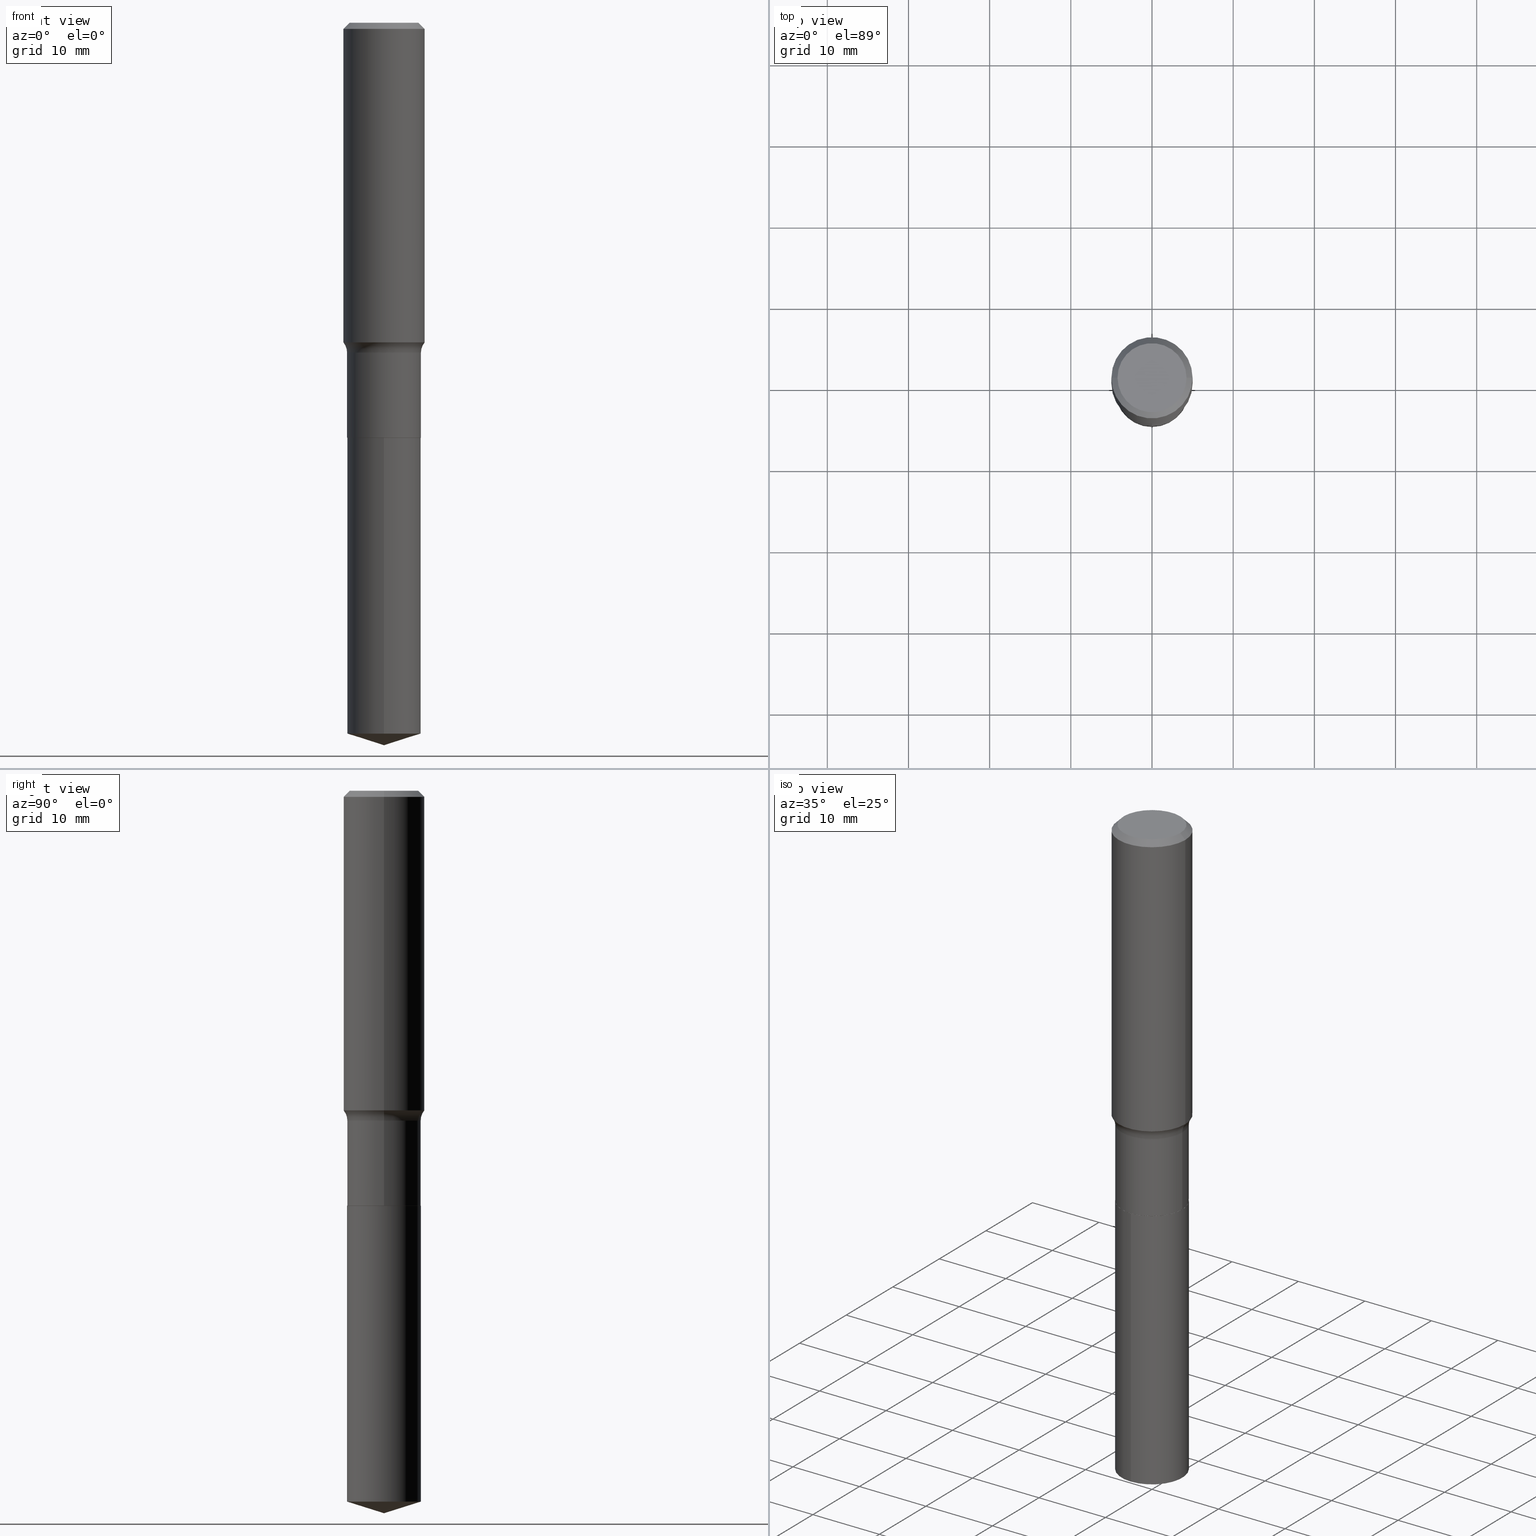
[diagram: canonical four-view strip — front | top / right | iso, engineering-drawing reading convention]
A machine part, canonical four-view strip (front | top / right | iso — engineering-drawing reading convention). The complete STEP part file that produces these views, byte-faithful:
ISO-10303-21;
HEADER;
FILE_DESCRIPTION (( 'STEP AP203' ),
    '1' );
FILE_NAME ('63773.STEP',
    '2024-04-19T15:09:27',
    ( '' ),
    ( '' ),
    'SwSTEP 2.0',
    'SolidWorks 2023',
    '' );
FILE_SCHEMA (( 'CONFIG_CONTROL_DESIGN' ));
ENDSEC;

DATA;
#1 = CARTESIAN_POINT ( 'NONE',  ( 7.220858017463207734E-31, -1.030947152326916363E-16, -0.02952750000000018554 ) ) ;
#2 = ORIENTED_EDGE ( 'NONE', *, *, #24, .T. ) ;
#3 = DIRECTION ( 'NONE',  ( -2.445392753752402791E-29, 3.491590250255455996E-15, 1.000000000000000000 ) ) ;
#4 = CARTESIAN_POINT ( 'NONE',  ( 0.1968500000000002470, -6.787522268346197963E-15, -1.550323642009541203 ) ) ;
#5 = EDGE_CURVE ( 'NONE', #71, #12, #87, .T. ) ;
#6 = CARTESIAN_POINT ( 'NONE',  ( 4.919794144283256694E-29, -7.024162157484638649E-15, -2.011799999999999589 ) ) ;
#7 = DATE_TIME_ROLE ( 'creation_date' ) ;
#8 = CARTESIAN_POINT ( 'NONE',  ( -0.1968500000000000527, -1.359307014894414260E-15, -0.02952750000000018554 ) ) ;
#9 = VECTOR ( 'NONE', #316, 39.37007874015748143 ) ;
#10 = LINE ( 'NONE', #193, #9 ) ;
#11 = ORIENTED_EDGE ( 'NONE', *, *, #58, .T. ) ;
#12 = VERTEX_POINT ( 'NONE', #396 ) ;
#13 = CARTESIAN_POINT ( 'NONE',  ( 1.272937311114268616E-15, 0.1791499999999929815, -2.011800000000000477 ) ) ;
#14 = PERSON_AND_ORGANIZATION_ROLE ( 'design_supplier' ) ;
#15 = VERTEX_POINT ( 'NONE', #429 ) ;
#16 = DIRECTION ( 'NONE',  ( -2.445468806185136597E-29, 3.491481338843145583E-15, 1.000000000000000000 ) ) ;
#17 = AXIS2_PLACEMENT_3D ( 'NONE', #61, #218, #101 ) ;
#18 = EDGE_LOOP ( 'NONE', ( #129, #363, #440 ) ) ;
#19 = CARTESIAN_POINT ( 'NONE',  ( 7.220858017463207734E-31, -1.030947152326916363E-16, -0.02952750000000018554 ) ) ;
#20 = EDGE_CURVE ( 'NONE', #284, #82, #401, .T. ) ;
#21 = ORIENTED_EDGE ( 'NONE', *, *, #388, .F. ) ;
#22 = LINE ( 'NONE', #171, #73 ) ;
#23 = DIRECTION ( 'NONE',  ( 1.000000000000000000, -6.982962677686267499E-15, 0.000000000000000000 ) ) ;
#24 = EDGE_CURVE ( 'NONE', #132, #390, #84, .T. ) ;
#25 = AXIS2_PLACEMENT_3D ( 'NONE', #417, #407, #57 ) ;
#26 = LOCAL_TIME ( 11, 9, 27.00000000000000000, #468 ) ;
#27 = DIRECTION ( 'NONE',  ( -2.445468806185136597E-29, 3.491481338843145583E-15, 1.000000000000000000 ) ) ;
#29 = DIRECTION ( 'NONE',  ( -2.445468806185136877E-29, 3.491481338843145188E-15, 1.000000000000000000 ) ) ;
#28 = AXIS2_PLACEMENT_3D ( 'NONE', #65, #72, #307 ) ;
#30 = EDGE_CURVE ( 'NONE', #361, #390, #189, .T. ) ;
#31 = CARTESIAN_POINT ( 'NONE',  ( 0.1968500000000001360, -1.374596203102542594E-15, 9.598753983154306463E-30 ) ) ;
#32 = DIRECTION ( 'NONE',  ( -6.982962677686265133E-15, -1.000000000000000000, 3.049788438363675772E-15 ) ) ;
#33 = ADVANCED_FACE ( 'NONE', ( #43 ), #340, .T. ) ;
#34 = PRODUCT_DEFINITION_FORMATION_WITH_SPECIFIED_SOURCE ( 'ANY', '', #79, .NOT_KNOWN. ) ;
#35 = ORIENTED_EDGE ( 'NONE', *, *, #346, .T. ) ;
#36 = LINE ( 'NONE', #362, #102 ) ;
#37 = ADVANCED_FACE ( 'NONE', ( #278 ), #380, .F. ) ;
#38 = APPROVAL ( #384, 'UNSPECIFIED' ) ;
#39 = DIRECTION ( 'NONE',  ( -2.445392753752402791E-29, 3.491590250255455996E-15, 1.000000000000000000 ) ) ;
#40 = DIRECTION ( 'NONE',  ( 1.000000000000000000, -6.982962677686267499E-15, 4.876294436782262290E-29 ) ) ;
#41 = AXIS2_PLACEMENT_3D ( 'NONE', #441, #16, #367 ) ;
#42 = VERTEX_POINT ( 'NONE', #238 ) ;
#43 = FACE_OUTER_BOUND ( 'NONE', #327, .T. ) ;
#44 = DIRECTION ( 'NONE',  ( 1.000000000000000000, -6.982962677686267499E-15, 4.876176775795935793E-29 ) ) ;
#45 = CARTESIAN_POINT ( 'NONE',  ( 0.000000000000000000, 0.000000000000000000, 0.000000000000000000 ) ) ;
#46 = ORIENTED_EDGE ( 'NONE', *, *, #256, .T. ) ;
#47 = APPROVAL_ROLE ( '' ) ;
#48 = ORIENTED_EDGE ( 'NONE', *, *, #5, .T. ) ;
#49 = CARTESIAN_POINT ( 'NONE',  ( 4.918571409880165014E-29, -7.022416416815218724E-15, -2.011299999999999866 ) ) ;
#50 = DIRECTION ( 'NONE',  ( 2.445392753752402791E-29, -3.491590250255455602E-15, -1.000000000000000000 ) ) ;
#51 = ORIENTED_EDGE ( 'NONE', *, *, #308, .T. ) ;
#52 = CARTESIAN_POINT ( 'NONE',  ( 0.1786500000000000310, -8.271668439853290854E-15, -2.011799999999999589 ) ) ;
#53 = AXIS2_PLACEMENT_3D ( 'NONE', #460, #201, #114 ) ;
#54 = CC_DESIGN_APPROVAL ( #136, ( #421 ) ) ;
#55 = EDGE_CURVE ( 'NONE', #82, #197, #324, .T. ) ;
#56 = ORIENTED_EDGE ( 'NONE', *, *, #55, .T. ) ;
#57 = DIRECTION ( 'NONE',  ( 1.000000000000000000, -6.982962677686269866E-15, 0.000000000000000000 ) ) ;
#58 = EDGE_CURVE ( 'NONE', #15, #42, #212, .T. ) ;
#59 = AXIS2_PLACEMENT_3D ( 'NONE', #158, #317, #466 ) ;
#60 = AXIS2_PLACEMENT_3D ( 'NONE', #488, #409, #418 ) ;
#61 = CARTESIAN_POINT ( 'NONE',  ( -8.770674059368540989E-28, 1.252302191110326694E-13, 35.86617874015747987 ) ) ;
#62 = CARTESIAN_POINT ( 'NONE',  ( 3.791268106025665529E-29, -5.412926065243653988E-15, -1.550323642009541203 ) ) ;
#63 = FACE_OUTER_BOUND ( 'NONE', #478, .T. ) ;
#64 = AXIS2_PLACEMENT_3D ( 'NONE', #255, #248, #133 ) ;
#65 = CARTESIAN_POINT ( 'NONE',  ( 4.919794144283257255E-29, -7.024162157484639438E-15, -2.011800000000000033 ) ) ;
#66 = ORIENTED_EDGE ( 'NONE', *, *, #325, .T. ) ;
#67 = EDGE_LOOP ( 'NONE', ( #254, #372, #81, #134 ) ) ;
#68 = PERSON_AND_ORGANIZATION_ROLE ( 'creator' ) ;
#69 = EDGE_CURVE ( 'NONE', #200, #160, #454, .T. ) ;
#70 = ORIENTED_EDGE ( 'NONE', *, *, #484, .T. ) ;
#71 = VERTEX_POINT ( 'NONE', #251 ) ;
#72 = DIRECTION ( 'NONE',  ( -2.445392753752402791E-29, 3.491590250255455996E-15, 1.000000000000000000 ) ) ;
#73 = VECTOR ( 'NONE', #94, 39.37007874015748854 ) ;
#74 = ORIENTED_EDGE ( 'NONE', *, *, #105, .T. ) ;
#75 = DIRECTION ( 'NONE',  ( -2.445468806185136597E-29, 3.491481338843145583E-15, 1.000000000000000000 ) ) ;
#76 = DESIGN_CONTEXT ( 'detailed design', #377, 'design' ) ;
#77 = DIRECTION ( 'NONE',  ( -2.445392753752402791E-29, 3.491590250255455996E-15, 1.000000000000000000 ) ) ;
#78 = EDGE_CURVE ( 'NONE', #390, #132, #303, .T. ) ;
#79 = PRODUCT ( '63773', '63773', '', ( #302 ) ) ;
#80 = DIRECTION ( 'NONE',  ( -2.445468806185136597E-29, 3.491481338843145583E-15, 1.000000000000000000 ) ) ;
#81 = ORIENTED_EDGE ( 'NONE', *, *, #325, .F. ) ;
#82 = VERTEX_POINT ( 'NONE', #135 ) ;
#83 = DIRECTION ( 'NONE',  ( 1.000000000000000000, -6.982962677686267499E-15, 4.876294436782262290E-29 ) ) ;
#84 = CIRCLE ( 'NONE', #53, 0.1968500000000000527 ) ;
#85 = ORIENTED_EDGE ( 'NONE', *, *, #308, .F. ) ;
#86 = AXIS2_PLACEMENT_3D ( 'NONE', #62, #298, #419 ) ;
#87 = LINE ( 'NONE', #124, #221 ) ;
#88 = FACE_OUTER_BOUND ( 'NONE', #277, .T. ) ;
#89 = CALENDAR_DATE ( 2024, 19, 4 ) ;
#90 = ORIENTED_EDGE ( 'NONE', *, *, #227, .T. ) ;
#91 = ADVANCED_FACE ( 'NONE', ( #290 ), #92, .F. ) ;
#92 = PLANE ( 'NONE',  #176 ) ;
#93 = ORIENTED_EDGE ( 'NONE', *, *, #175, .F. ) ;
#94 = DIRECTION ( 'NONE',  ( 6.776566513254260504E-15, 0.9537169507482292641, 0.3007057995042659027 ) ) ;
#95 = EDGE_CURVE ( 'NONE', #71, #284, #22, .T. ) ;
#96 = ORIENTED_EDGE ( 'NONE', *, *, #470, .T. ) ;
#97 = DIRECTION ( 'NONE',  ( 0.7071067811865459074, -7.319954787623249734E-15, -0.7071067811865491270 ) ) ;
#98 = AXIS2_PLACEMENT_3D ( 'NONE', #314, #198, #40 ) ;
#99 = CIRCLE ( 'NONE', #253, 0.1791500000000000314 ) ;
#100 = ORIENTED_EDGE ( 'NONE', *, *, #170, .F. ) ;
#101 = DIRECTION ( 'NONE',  ( -6.982962677686265922E-15, -1.000000000000000000, 3.500519750498688260E-15 ) ) ;
#102 = VECTOR ( 'NONE', #270, 39.37007874015748854 ) ;
#103 = TOROIDAL_SURFACE ( 'NONE', #463, 0.2571499999999999342, 0.07799999999999999989 ) ;
#104 = CARTESIAN_POINT ( 'NONE',  ( 3.912260996134981658E-29, -5.585671845881263700E-15, -1.599799999999999889 ) ) ;
#105 = EDGE_CURVE ( 'NONE', #280, #132, #331, .T. ) ;
#106 = CARTESIAN_POINT ( 'NONE',  ( 0.000000000000000000, 0.000000000000000000, 0.000000000000000000 ) ) ;
#107 = EDGE_CURVE ( 'NONE', #284, #12, #299, .T. ) ;
#108 = FACE_OUTER_BOUND ( 'NONE', #204, .T. ) ;
#109 = ORIENTED_EDGE ( 'NONE', *, *, #143, .F. ) ;
#110 = APPROVAL ( #286, 'UNSPECIFIED' ) ;
#111 =( NAMED_UNIT ( * ) SI_UNIT ( $, .STERADIAN. ) SOLID_ANGLE_UNIT ( ) );
#112 = FACE_OUTER_BOUND ( 'NONE', #404, .T. ) ;
#113 = DIRECTION ( 'NONE',  ( 1.000000000000000000, -6.982962677686266711E-15, 4.883557194083112901E-29 ) ) ;
#114 = DIRECTION ( 'NONE',  ( 1.000000000000000000, -6.982962677686266711E-15, 0.000000000000000000 ) ) ;
#115 = CYLINDRICAL_SURFACE ( 'NONE', #393, 0.1791500000000000314 ) ;
#116 = CIRCLE ( 'NONE', #231, 0.1791499999999999759 ) ;
#117 = CC_DESIGN_SECURITY_CLASSIFICATION ( #421, ( #34 ) ) ;
#118 = PERSON_AND_ORGANIZATION_ROLE ( 'creator' ) ;
#119 = EDGE_LOOP ( 'NONE', ( #438, #406, #436, #442 ) ) ;
#120 = DIRECTION ( 'NONE',  ( -2.445468806185136597E-29, 3.491481338843145583E-15, 1.000000000000000000 ) ) ;
#121 = DATE_AND_TIME ( #202, #271 ) ;
#122 = CARTESIAN_POINT ( 'NONE',  ( -1.250997763707445513E-15, -0.1791500000000070536, -2.011799999999999145 ) ) ;
#123 = EDGE_LOOP ( 'NONE', ( #247, #51, #70, #400 ) ) ;
#124 = CARTESIAN_POINT ( 'NONE',  ( 8.568411669873045356E-29, -1.223418307787009269E-14, -3.503899999999999793 ) ) ;
#125 = APPROVAL_DATE_TIME ( #162, #110 ) ;
#126 = AXIS2_PLACEMENT_3D ( 'NONE', #49, #205, #288 ) ;
#127 = ORIENTED_EDGE ( 'NONE', *, *, #334, .T. ) ;
#128 = CC_DESIGN_APPROVAL ( #110, ( #34 ) ) ;
#129 = ORIENTED_EDGE ( 'NONE', *, *, #5, .F. ) ;
#130 = PERSON_AND_ORGANIZATION ( #232, #142 ) ;
#131 = EDGE_CURVE ( 'NONE', #42, #287, #369, .T. ) ;
#132 = VERTEX_POINT ( 'NONE', #266 ) ;
#133 = DIRECTION ( 'NONE',  ( -6.982962677686265133E-15, -1.000000000000000000, 3.049788438363675772E-15 ) ) ;
#134 = ORIENTED_EDGE ( 'NONE', *, *, #450, .F. ) ;
#135 = CARTESIAN_POINT ( 'NONE',  ( 1.272937311114303917E-15, 0.1791499999999929815, -2.011800000000000477 ) ) ;
#136 = APPROVAL ( #365, 'UNSPECIFIED' ) ;
#137 = ORIENTED_EDGE ( 'NONE', *, *, #30, .F. ) ;
#138 = AXIS2_PLACEMENT_3D ( 'NONE', #209, #412, #166 ) ;
#139 = VECTOR ( 'NONE', #348, 39.37007874015748143 ) ;
#140 = CARTESIAN_POINT ( 'NONE',  ( 1.272937311114304312E-15, 0.1791499999999880688, -3.447414221972331383 ) ) ;
#141 = APPLICATION_CONTEXT ( 'configuration controlled 3d designs of mechanical parts and assemblies' ) ;
#142 = ORGANIZATION ( 'UNSPECIFIED', 'UNSPECIFIED', '' ) ;
#143 = EDGE_CURVE ( 'NONE', #200, #411, #472, .T. ) ;
#144 = FACE_OUTER_BOUND ( 'NONE', #123, .T. ) ;
#145 = CC_DESIGN_PERSON_AND_ORGANIZATION_ASSIGNMENT ( #224, #68, ( #355 ) ) ;
#146 = PERSON_AND_ORGANIZATION ( #232, #142 ) ;
#148 = AXIS2_PLACEMENT_3D ( 'NONE', #45, #75, #152 ) ;
#147 =( NAMED_UNIT ( * ) PLANE_ANGLE_UNIT ( ) SI_UNIT ( $, .RADIAN. ) );
#149 = CARTESIAN_POINT ( 'NONE',  ( 4.919794144283257255E-29, -7.024162157484639438E-15, -2.011800000000000033 ) ) ;
#150 = EDGE_LOOP ( 'NONE', ( #161, #48, #351 ) ) ;
#151 = PERSON_AND_ORGANIZATION ( #232, #142 ) ;
#152 = DIRECTION ( 'NONE',  ( 1.000000000000000000, -6.982962677686267499E-15, 4.876176775795935793E-29 ) ) ;
#153 = DIRECTION ( 'NONE',  ( -2.445468806185136877E-29, 3.491481338843145188E-15, 1.000000000000000000 ) ) ;
#154 = CALENDAR_DATE ( 2024, 19, 4 ) ;
#155 = APPROVAL_PERSON_ORGANIZATION ( #151, #38, #265 ) ;
#156 = DIRECTION ( 'NONE',  ( -6.982962677686265922E-15, -1.000000000000000000, 3.500519750498688260E-15 ) ) ;
#157 = ADVANCED_FACE ( 'NONE', ( #88 ), #115, .T. ) ;
#158 = CARTESIAN_POINT ( 'NONE',  ( 7.220858017463207734E-31, -1.030947152326916363E-16, -0.02952750000000018554 ) ) ;
#159 = LINE ( 'NONE', #122, #283 ) ;
#160 = VERTEX_POINT ( 'NONE', #457 ) ;
#161 = ORIENTED_EDGE ( 'NONE', *, *, #95, .F. ) ;
#162 = DATE_AND_TIME ( #89, #487 ) ;
#163 = CIRCLE ( 'NONE', #98, 0.1673224999999999851 ) ;
#164 = ORIENTED_EDGE ( 'NONE', *, *, #69, .T. ) ;
#165 = VECTOR ( 'NONE', #29, 39.37007874015748143 ) ;
#166 = DIRECTION ( 'NONE',  ( -6.982962677686265133E-15, -1.000000000000000000, 3.049788438363675772E-15 ) ) ;
#167 = ORIENTED_EDGE ( 'NONE', *, *, #107, .T. ) ;
#168 = DIRECTION ( 'NONE',  ( -2.445468806185136597E-29, 3.491481338843145583E-15, 1.000000000000000000 ) ) ;
#169 = EDGE_LOOP ( 'NONE', ( #306, #366 ) ) ;
#170 = EDGE_CURVE ( 'NONE', #280, #361, #313, .T. ) ;
#171 = CARTESIAN_POINT ( 'NONE',  ( 8.568720357740247371E-29, -1.223374486191152020E-14, -3.503899999999999793 ) ) ;
#172 = CARTESIAN_POINT ( 'NONE',  ( 0.1673224999999999851, -1.300749711163072594E-15, 4.096137381456741925E-18 ) ) ;
#173 = VECTOR ( 'NONE', #281, 39.37007874015748143 ) ;
#174 = CIRCLE ( 'NONE', #222, 0.1786500000000000310 ) ;
#175 = EDGE_CURVE ( 'NONE', #347, #287, #36, .T. ) ;
#176 = AXIS2_PLACEMENT_3D ( 'NONE', #376, #443, #328 ) ;
#177 = DIRECTION ( 'NONE',  ( 1.000000000000000000, -6.982962677686265922E-15, 4.876176775795935793E-29 ) ) ;
#178 = CYLINDRICAL_SURFACE ( 'NONE', #215, 0.1968500000000001360 ) ;
#179 = PRODUCT_RELATED_PRODUCT_CATEGORY ( 'detail', '', ( #79 ) ) ;
#180 = DIRECTION ( 'NONE',  ( -6.982962677686265133E-15, -1.000000000000000000, 3.049788438363675772E-15 ) ) ;
#181 = APPLICATION_PROTOCOL_DEFINITION ( 'international standard', 'config_control_design', 1994, #141 ) ;
#182 = VECTOR ( 'NONE', #364, 39.37007874015748143 ) ;
#183 = ORIENTED_EDGE ( 'NONE', *, *, #20, .F. ) ;
#185 =( LENGTH_UNIT ( ) NAMED_UNIT ( * ) SI_UNIT ( $, .METRE. ) );
#184 = APPROVAL_PERSON_ORGANIZATION ( #321, #136, #47 ) ;
#186 = EDGE_LOOP ( 'NONE', ( #100, #74, #2, #137 ) ) ;
#187 = DIRECTION ( 'NONE',  ( -2.445468806185136597E-29, 3.491481338843145583E-15, 1.000000000000000000 ) ) ;
#188 = CARTESIAN_POINT ( 'NONE',  ( -0.1786500000000000310, -5.752128332875109429E-15, -2.011799999999999589 ) ) ;
#189 = LINE ( 'NONE', #357, #182 ) ;
#190 = LINE ( 'NONE', #358, #349 ) ;
#191 = DATE_TIME_ROLE ( 'classification_date' ) ;
#192 = ADVANCED_FACE ( 'NONE', ( #112 ), #214, .T. ) ;
#193 = CARTESIAN_POINT ( 'NONE',  ( -0.1791499999999999759, 1.272937311114219312E-15, -8.812272214191663486E-30 ) ) ;
#194 = PERSON_AND_ORGANIZATION ( #232, #142 ) ;
#195 = VECTOR ( 'NONE', #373, 39.37007874015748854 ) ;
#196 = FACE_OUTER_BOUND ( 'NONE', #150, .T. ) ;
#197 = VERTEX_POINT ( 'NONE', #354 ) ;
#198 = DIRECTION ( 'NONE',  ( -2.445468806185136597E-29, 3.491481338843145583E-15, 1.000000000000000000 ) ) ;
#199 = PERSON_AND_ORGANIZATION ( #232, #142 ) ;
#200 = VERTEX_POINT ( 'NONE', #4 ) ;
#201 = DIRECTION ( 'NONE',  ( -2.445468806185136597E-29, 3.491481338843145583E-15, 1.000000000000000000 ) ) ;
#202 = CALENDAR_DATE ( 2024, 19, 4 ) ;
#203 = CARTESIAN_POINT ( 'NONE',  ( 4.919794144283256694E-29, -7.024162157484638649E-15, -2.011799999999999589 ) ) ;
#204 = EDGE_LOOP ( 'NONE', ( #164, #90, #333, #237 ) ) ;
#205 = DIRECTION ( 'NONE',  ( -2.445468806185136597E-29, 3.491481338843145583E-15, 1.000000000000000000 ) ) ;
#206 = DIRECTION ( 'NONE',  ( 6.982962677686265922E-15, 1.000000000000000000, -3.491590250255455602E-15 ) ) ;
#207 = VERTEX_POINT ( 'NONE', #279 ) ;
#208 = AXIS2_PLACEMENT_3D ( 'NONE', #1, #387, #458 ) ;
#209 = CARTESIAN_POINT ( 'NONE',  ( 4.919794144283257255E-29, -7.024162157484639438E-15, -2.011800000000000033 ) ) ;
#210 = ADVANCED_BREP_SHAPE_REPRESENTATION ( '63773', ( #274, #275, #262 ), #386 ) ;
#211 = ORIENTED_EDGE ( 'NONE', *, *, #329, .T. ) ;
#212 = LINE ( 'NONE', #52, #195 ) ;
#213 = CYLINDRICAL_SURFACE ( 'NONE', #326, 0.1968500000000001360 ) ;
#214 = CONICAL_SURFACE ( 'NONE', #461, 0.1786500000000000310, 0.7853981633978239785 ) ;
#215 = AXIS2_PLACEMENT_3D ( 'NONE', #225, #456, #230 ) ;
#216 = CARTESIAN_POINT ( 'NONE',  ( -0.2571499999999999342, -3.758511200874166934E-15, -1.599799999999999889 ) ) ;
#217 = ADVANCED_FACE ( 'NONE', ( #402 ), #233, .T. ) ;
#218 = DIRECTION ( 'NONE',  ( -2.445392753752402791E-29, 3.491590250255455996E-15, 1.000000000000000000 ) ) ;
#219 = CC_DESIGN_PERSON_AND_ORGANIZATION_ASSIGNMENT ( #199, #403, ( #421 ) ) ;
#220 = APPLICATION_PROTOCOL_DEFINITION ( 'international standard', 'config_control_design', 1994, #377 ) ;
#221 = VECTOR ( 'NONE', #244, 39.37007874015748143 ) ;
#222 = AXIS2_PLACEMENT_3D ( 'NONE', #203, #475, #273 ) ;
#223 = DIRECTION ( 'NONE',  ( 1.000000000000000000, 0.000000000000000000, 0.000000000000000000 ) ) ;
#224 = PERSON_AND_ORGANIZATION ( #232, #142 ) ;
#225 = CARTESIAN_POINT ( 'NONE',  ( 0.000000000000000000, 0.000000000000000000, 0.000000000000000000 ) ) ;
#226 = DIRECTION ( 'NONE',  ( -2.445392753752402791E-29, 3.491590250255455602E-15, 1.000000000000000000 ) ) ;
#227 = EDGE_CURVE ( 'NONE', #160, #390, #190, .T. ) ;
#228 = CONICAL_SURFACE ( 'NONE', #17, 124.8659371009156445, 1.265363707695893014 ) ;
#229 = ORIENTED_EDGE ( 'NONE', *, *, #388, .T. ) ;
#231 = AXIS2_PLACEMENT_3D ( 'NONE', #249, #410, #435 ) ;
#230 = DIRECTION ( 'NONE',  ( 1.000000000000000000, -6.982962677686266711E-15, 4.876176775795935793E-29 ) ) ;
#232 = PERSON ( 'UNSPECIFIED', 'UNSPECIFIED', 'UNSPECIFIED', ('UNSPECIFIED'), ('UNSPECIFIED'), ('UNSPECIFIED') ) ;
#233 = CYLINDRICAL_SURFACE ( 'NONE', #258, 0.1791499999999999759 ) ;
#234 = EDGE_CURVE ( 'NONE', #361, #280, #163, .T. ) ;
#235 = CARTESIAN_POINT ( 'NONE',  ( -0.1673224999999999851, 1.219954130253505460E-15, 4.096137381439757534E-18 ) ) ;
#236 = ADVANCED_FACE ( 'NONE', ( #339 ), #228, .T. ) ;
#237 = ORIENTED_EDGE ( 'NONE', *, *, #484, .F. ) ;
#238 = CARTESIAN_POINT ( 'NONE',  ( 0.1791500000000000314, -8.273414180522713146E-15, -2.011299999999999866 ) ) ;
#239 = DIRECTION ( 'NONE',  ( 1.000000000000000000, -6.982962677686263555E-15, 0.000000000000000000 ) ) ;
#240 = PERSON_AND_ORGANIZATION ( #232, #142 ) ;
#241 = CIRCLE ( 'NONE', #360, 0.1791500000000000314 ) ;
#242 = CYLINDRICAL_SURFACE ( 'NONE', #148, 0.1791499999999999759 ) ;
#243 = EDGE_LOOP ( 'NONE', ( #465, #56 ) ) ;
#244 = DIRECTION ( 'NONE',  ( -6.659769872151635244E-15, -0.9537169507482271547, 0.3007057995042725640 ) ) ;
#245 = CALENDAR_DATE ( 2024, 19, 4 ) ;
#246 = DIRECTION ( 'NONE',  ( -1.000000000000000000, 7.105427357601001859E-15, 0.000000000000000000 ) ) ;
#247 = ORIENTED_EDGE ( 'NONE', *, *, #227, .F. ) ;
#248 = DIRECTION ( 'NONE',  ( -2.445392753752402791E-29, 3.491590250255455996E-15, 1.000000000000000000 ) ) ;
#249 = CARTESIAN_POINT ( 'NONE',  ( 3.912260996134981658E-29, -5.585671845881263700E-15, -1.599799999999999889 ) ) ;
#250 = ORIENTED_EDGE ( 'NONE', *, *, #234, .F. ) ;
#251 = CARTESIAN_POINT ( 'NONE',  ( 8.568411669873043113E-29, -1.223418307787009269E-14, -3.503899999999999793 ) ) ;
#252 = AXIS2_PLACEMENT_3D ( 'NONE', #399, #120, #83 ) ;
#253 = AXIS2_PLACEMENT_3D ( 'NONE', #431, #423, #180 ) ;
#254 = ORIENTED_EDGE ( 'NONE', *, *, #131, .T. ) ;
#255 = CARTESIAN_POINT ( 'NONE',  ( 8.430434759878289213E-29, -1.203673877805130082E-14, -3.447414221972330495 ) ) ;
#256 = EDGE_CURVE ( 'NONE', #347, #15, #445, .T. ) ;
#257 = DIRECTION ( 'NONE',  ( -2.438088387897960049E-29, 3.491481338843145188E-15, 1.000000000000000000 ) ) ;
#258 = AXIS2_PLACEMENT_3D ( 'NONE', #464, #397, #44 ) ;
#259 = AXIS2_PLACEMENT_3D ( 'NONE', #398, #39, #156 ) ;
#260 = PERSON_AND_ORGANIZATION_ROLE ( 'design_owner' ) ;
#261 = ADVANCED_FACE ( 'NONE', ( #332 ), #480, .F. ) ;
#262 = AXIS2_PLACEMENT_3D ( 'NONE', #106, #424, #223 ) ;
#263 = ORIENTED_EDGE ( 'NONE', *, *, #78, .T. ) ;
#264 = APPROVAL_DATE_TIME ( #425, #38 ) ;
#265 = APPROVAL_ROLE ( '' ) ;
#266 = CARTESIAN_POINT ( 'NONE',  ( 0.1968500000000000527, -1.477690918335233688E-15, -0.02952750000000018554 ) ) ;
#267 = DIRECTION ( 'NONE',  ( -6.982962677686266711E-15, -1.000000000000000000, 3.491481338843145583E-15 ) ) ;
#268 = FACE_OUTER_BOUND ( 'NONE', #186, .T. ) ;
#269 = EDGE_CURVE ( 'NONE', #287, #42, #482, .T. ) ;
#270 = DIRECTION ( 'NONE',  ( -0.7071067811868130271, 7.493145998871311837E-15, 0.7071067811862817853 ) ) ;
#272 = APPROVAL_ROLE ( '' ) ;
#271 = LOCAL_TIME ( 11, 9, 27.00000000000000000, #282 ) ;
#273 = DIRECTION ( 'NONE',  ( 1.000000000000000000, -6.982962677686263555E-15, 0.000000000000000000 ) ) ;
#274 = MANIFOLD_SOLID_BREP ( 'Body-Move/Copy2[1]', #420 ) ;
#275 = MANIFOLD_SOLID_BREP ( 'Body-Move/Copy2[2]', #336 ) ;
#276 = CC_DESIGN_DATE_AND_TIME_ASSIGNMENT ( #323, #191, ( #421 ) ) ;
#277 = EDGE_LOOP ( 'NONE', ( #183, #167, #229, #309 ) ) ;
#278 = FACE_OUTER_BOUND ( 'NONE', #375, .T. ) ;
#279 = CARTESIAN_POINT ( 'NONE',  ( -0.1791499999999999759, -5.031106820234022294E-15, -1.599799999999999889 ) ) ;
#280 = VERTEX_POINT ( 'NONE', #172 ) ;
#281 = DIRECTION ( 'NONE',  ( -2.445392753752402791E-29, 3.491590250255455602E-15, 1.000000000000000000 ) ) ;
#282 = COORDINATED_UNIVERSAL_TIME_OFFSET ( 5, 0, .BEHIND. ) ;
#283 = VECTOR ( 'NONE', #226, 39.37007874015748143 ) ;
#284 = VERTEX_POINT ( 'NONE', #140 ) ;
#285 = PRODUCT_DEFINITION_SHAPE ( 'NONE', 'NONE',  #355 ) ;
#286 = APPROVAL_STATUS ( 'not_yet_approved' ) ;
#287 = VERTEX_POINT ( 'NONE', #335 ) ;
#288 = DIRECTION ( 'NONE',  ( 1.000000000000000000, -6.982962677686267499E-15, 0.000000000000000000 ) ) ;
#289 = ORIENTED_EDGE ( 'NONE', *, *, #30, .T. ) ;
#290 = FACE_OUTER_BOUND ( 'NONE', #322, .T. ) ;
#291 = ADVANCED_FACE ( 'NONE', ( #483 ), #296, .F. ) ;
#292 = CARTESIAN_POINT ( 'NONE',  ( 4.919794144283257255E-29, -7.024162157484639438E-15, -2.011800000000000033 ) ) ;
#293 = CONICAL_SURFACE ( 'NONE', #208, 0.1968500000000000527, 0.7853981633974460586 ) ;
#294 = ORIENTED_EDGE ( 'NONE', *, *, #329, .F. ) ;
#295 = CC_DESIGN_PERSON_AND_ORGANIZATION_ASSIGNMENT ( #240, #118, ( #34 ) ) ;
#296 = PLANE ( 'NONE',  #428 ) ;
#297 = CARTESIAN_POINT ( 'NONE',  ( 0.000000000000000000, 0.000000000000000000, 0.000000000000000000 ) ) ;
#298 = DIRECTION ( 'NONE',  ( -2.445468806185136597E-29, 3.491481338843145583E-15, 1.000000000000000000 ) ) ;
#299 = CIRCLE ( 'NONE', #64, 0.1791500000000000314 ) ;
#300 = CONICAL_SURFACE ( 'NONE', #259, 124.8659371009156445, 1.265363707695893014 ) ;
#301 = UNCERTAINTY_MEASURE_WITH_UNIT (LENGTH_MEASURE( 1.000000000000000082E-05 ), #395, 'distance_accuracy_value', 'NONE');
#302 = MECHANICAL_CONTEXT ( 'NONE', #141, 'mechanical' ) ;
#303 = CIRCLE ( 'NONE', #413, 0.1968500000000000527 ) ;
#304 = FACE_OUTER_BOUND ( 'NONE', #451, .T. ) ;
#305 = DIRECTION ( 'NONE',  ( -6.982962677686265133E-15, -1.000000000000000000, 3.049788438363675772E-15 ) ) ;
#306 = ORIENTED_EDGE ( 'NONE', *, *, #346, .F. ) ;
#307 = DIRECTION ( 'NONE',  ( -6.982962677686265133E-15, -1.000000000000000000, 3.049788438363675772E-15 ) ) ;
#308 = EDGE_CURVE ( 'NONE', #160, #200, #437, .T. ) ;
#309 = ORIENTED_EDGE ( 'NONE', *, *, #55, .F. ) ;
#310 = LENGTH_MEASURE_WITH_UNIT ( LENGTH_MEASURE( 0.02539999999999999897 ), #185 );
#311 = FACE_OUTER_BOUND ( 'NONE', #320, .T. ) ;
#312 = CC_DESIGN_PERSON_AND_ORGANIZATION_ASSIGNMENT ( #130, #14, ( #34 ) ) ;
#313 = CIRCLE ( 'NONE', #252, 0.1673224999999999851 ) ;
#314 = CARTESIAN_POINT ( 'NONE',  ( -1.001697619218021790E-46, 1.430158722866389718E-32, 4.096137381448108366E-18 ) ) ;
#315 = COORDINATED_UNIVERSAL_TIME_OFFSET ( 5, 0, .BEHIND. ) ;
#316 = DIRECTION ( 'NONE',  ( -2.445468806185136877E-29, 3.491481338843145188E-15, 1.000000000000000000 ) ) ;
#317 = DIRECTION ( 'NONE',  ( 2.445468806185136597E-29, -3.491481338843145583E-15, -1.000000000000000000 ) ) ;
#318 = ADVANCED_FACE ( 'NONE', ( #144 ), #213, .T. ) ;
#319 = DATE_AND_TIME ( #245, #26 ) ;
#320 = EDGE_LOOP ( 'NONE', ( #294, #492, #427, #66 ) ) ;
#321 = PERSON_AND_ORGANIZATION ( #232, #142 ) ;
#322 = EDGE_LOOP ( 'NONE', ( #447, #416 ) ) ;
#323 = DATE_AND_TIME ( #154, #449 ) ;
#324 = CIRCLE ( 'NONE', #138, 0.1791500000000000314 ) ;
#325 = EDGE_CURVE ( 'NONE', #411, #207, #381, .T. ) ;
#326 = AXIS2_PLACEMENT_3D ( 'NONE', #297, #343, #379 ) ;
#327 = EDGE_LOOP ( 'NONE', ( #476, #250, #289, #263 ) ) ;
#328 = DIRECTION ( 'NONE',  ( -1.000000000000000000, 6.982962677686265922E-15, -4.876176775795935793E-29 ) ) ;
#329 = EDGE_CURVE ( 'NONE', #160, #207, #341, .T. ) ;
#330 = ORIENTED_EDGE ( 'NONE', *, *, #131, .F. ) ;
#331 = LINE ( 'NONE', #477, #485 ) ;
#332 = FACE_OUTER_BOUND ( 'NONE', #243, .T. ) ;
#333 = ORIENTED_EDGE ( 'NONE', *, *, #24, .F. ) ;
#334 = EDGE_CURVE ( 'NONE', #207, #411, #116, .T. ) ;
#335 = CARTESIAN_POINT ( 'NONE',  ( -0.1791500000000000314, -5.031106820234021505E-15, -2.011299999999999866 ) ) ;
#336 = CLOSED_SHELL ( 'NONE', ( #192, #444, #462, #37, #359, #217, #408, #318, #33, #91, #291, #422 ) ) ;
#337 = LOCAL_TIME ( 11, 9, 27.00000000000000000, #491 ) ;
#338 = DIRECTION ( 'NONE',  ( 1.000000000000000000, -6.982962677686269866E-15, 0.000000000000000000 ) ) ;
#339 = FACE_OUTER_BOUND ( 'NONE', #18, .T. ) ;
#340 = CONICAL_SURFACE ( 'NONE', #59, 0.1968500000000000527, 0.7853981633974460586 ) ;
#341 = CIRCLE ( 'NONE', #446, 0.07800000000000002764 ) ;
#342 = CONICAL_SURFACE ( 'NONE', #394, 0.1786500000000000310, 0.7853981633978239785 ) ;
#343 = DIRECTION ( 'NONE',  ( -2.445468806185136597E-29, 3.491481338843145583E-15, 1.000000000000000000 ) ) ;
#344 = CARTESIAN_POINT ( 'NONE',  ( 0.1791499999999999759, -1.250997763707494620E-15, 8.735670693838418171E-30 ) ) ;
#345 = CARTESIAN_POINT ( 'NONE',  ( 4.919794144283256694E-29, -7.024162157484638649E-15, -2.011799999999999589 ) ) ;
#346 = EDGE_CURVE ( 'NONE', #15, #347, #174, .T. ) ;
#347 = VERTEX_POINT ( 'NONE', #188 ) ;
#348 = DIRECTION ( 'NONE',  ( -2.445468806185136877E-29, 3.491481338843145188E-15, 1.000000000000000000 ) ) ;
#349 = VECTOR ( 'NONE', #153, 39.37007874015748143 ) ;
#350 = APPROVAL_PERSON_ORGANIZATION ( #194, #110, #272 ) ;
#351 = ORIENTED_EDGE ( 'NONE', *, *, #107, .F. ) ;
#352 = LINE ( 'NONE', #344, #165 ) ;
#353 = CARTESIAN_POINT ( 'NONE',  ( 3.912260996134981658E-29, -5.585671845881263700E-15, -1.599799999999999889 ) ) ;
#354 = CARTESIAN_POINT ( 'NONE',  ( -1.250997763707445513E-15, -0.1791500000000070536, -2.011799999999999145 ) ) ;
#355 = PRODUCT_DEFINITION ( 'UNKNOWN', '', #34, #76 ) ;
#356 = FACE_OUTER_BOUND ( 'NONE', #67, .T. ) ;
#357 = CARTESIAN_POINT ( 'NONE',  ( -0.1968500000000000527, 1.271501487869850317E-15, -0.02952750000000018554 ) ) ;
#358 = CARTESIAN_POINT ( 'NONE',  ( -0.1968500000000001360, 1.398703375343758182E-15, -9.682923725166790684E-30 ) ) ;
#359 = ADVANCED_FACE ( 'NONE', ( #356 ), #242, .T. ) ;
#360 = AXIS2_PLACEMENT_3D ( 'NONE', #426, #3, #32 ) ;
#361 = VERTEX_POINT ( 'NONE', #235 ) ;
#362 = CARTESIAN_POINT ( 'NONE',  ( -0.1786500000000000310, -5.754777560049219842E-15, -2.011799999999999589 ) ) ;
#363 = ORIENTED_EDGE ( 'NONE', *, *, #95, .T. ) ;
#364 = DIRECTION ( 'NONE',  ( -0.7071067811865459074, 2.468850131082240100E-15, -0.7071067811865491270 ) ) ;
#365 = APPROVAL_STATUS ( 'not_yet_approved' ) ;
#366 = ORIENTED_EDGE ( 'NONE', *, *, #256, .F. ) ;
#367 = DIRECTION ( 'NONE',  ( 1.000000000000000000, -6.982962677686266711E-15, 4.883557194083112901E-29 ) ) ;
#368 = ADVANCED_FACE ( 'NONE', ( #196 ), #300, .T. ) ;
#369 = CIRCLE ( 'NONE', #126, 0.1791500000000000314 ) ;
#370 = CARTESIAN_POINT ( 'NONE',  ( 4.918571409880165014E-29, -7.022416416815218724E-15, -2.011299999999999866 ) ) ;
#371 = AXIS2_PLACEMENT_3D ( 'NONE', #292, #50, #206 ) ;
#372 = ORIENTED_EDGE ( 'NONE', *, *, #383, .T. ) ;
#373 = DIRECTION ( 'NONE',  ( 0.7071067811868130271, -2.468850131085038979E-15, 0.7071067811862817853 ) ) ;
#374 = CC_DESIGN_PERSON_AND_ORGANIZATION_ASSIGNMENT ( #146, #260, ( #79 ) ) ;
#375 = EDGE_LOOP ( 'NONE', ( #85, #211, #127, #109 ) ) ;
#376 = CARTESIAN_POINT ( 'NONE',  ( -5.008488096090108951E-47, 7.150793614331948590E-33, 2.048068690724054183E-18 ) ) ;
#377 = APPLICATION_CONTEXT ( 'configuration controlled 3d designs of mechanical parts and assemblies' ) ;
#378 = DIRECTION ( 'NONE',  ( -2.445468806185136597E-29, 3.491481338843145583E-15, 1.000000000000000000 ) ) ;
#379 = DIRECTION ( 'NONE',  ( 1.000000000000000000, -6.982962677686266711E-15, 4.876176775795935793E-29 ) ) ;
#380 = TOROIDAL_SURFACE ( 'NONE', #41, 0.2571499999999999342, 0.07799999999999999989 ) ;
#381 = CIRCLE ( 'NONE', #415, 0.1791499999999999759 ) ;
#382 = DIRECTION ( 'NONE',  ( 7.105427357601001859E-15, 1.000000000000000000, -3.491481338843145583E-15 ) ) ;
#383 = EDGE_CURVE ( 'NONE', #287, #207, #10, .T. ) ;
#384 = APPROVAL_STATUS ( 'not_yet_approved' ) ;
#385 = AXIS2_PLACEMENT_3D ( 'NONE', #490, #267, #467 ) ;
#386 =( GEOMETRIC_REPRESENTATION_CONTEXT ( 3 ) GLOBAL_UNCERTAINTY_ASSIGNED_CONTEXT ( ( #301 ) ) GLOBAL_UNIT_ASSIGNED_CONTEXT ( ( #395, #147, #111 ) ) REPRESENTATION_CONTEXT ( 'NONE', 'WORKASPACE' ) );
#387 = DIRECTION ( 'NONE',  ( 2.445468806185136597E-29, -3.491481338843145583E-15, -1.000000000000000000 ) ) ;
#388 = EDGE_CURVE ( 'NONE', #12, #197, #159, .T. ) ;
#389 = DIRECTION ( 'NONE',  ( 1.000000000000000000, -6.982962677686263555E-15, 0.000000000000000000 ) ) ;
#390 = VERTEX_POINT ( 'NONE', #8 ) ;
#391 = CYLINDRICAL_SURFACE ( 'NONE', #28, 0.1791500000000000314 ) ;
#392 = ORIENTED_EDGE ( 'NONE', *, *, #430, .F. ) ;
#393 = AXIS2_PLACEMENT_3D ( 'NONE', #149, #77, #305 ) ;
#394 = AXIS2_PLACEMENT_3D ( 'NONE', #345, #486, #389 ) ;
#395 =( CONVERSION_BASED_UNIT ( 'INCH', #310 ) LENGTH_UNIT ( ) NAMED_UNIT ( #489 ) );
#396 = CARTESIAN_POINT ( 'NONE',  ( -1.250997763707411000E-15, -0.1791500000000121329, -3.447414221972330051 ) ) ;
#397 = DIRECTION ( 'NONE',  ( -2.445468806185136597E-29, 3.491481338843145583E-15, 1.000000000000000000 ) ) ;
#398 = CARTESIAN_POINT ( 'NONE',  ( -8.770674059368540989E-28, 1.252302191110326694E-13, 35.86617874015747987 ) ) ;
#399 = CARTESIAN_POINT ( 'NONE',  ( -1.001697619218021790E-46, 1.430158722866389718E-32, 4.096137381448108366E-18 ) ) ;
#400 = ORIENTED_EDGE ( 'NONE', *, *, #78, .F. ) ;
#401 = LINE ( 'NONE', #13, #173 ) ;
#402 = FACE_OUTER_BOUND ( 'NONE', #119, .T. ) ;
#403 = PERSON_AND_ORGANIZATION_ROLE ( 'classification_officer' ) ;
#404 = EDGE_LOOP ( 'NONE', ( #35, #469, #330, #471 ) ) ;
#405 = SECURITY_CLASSIFICATION_LEVEL ( 'unclassified' ) ;
#406 = ORIENTED_EDGE ( 'NONE', *, *, #269, .T. ) ;
#407 = DIRECTION ( 'NONE',  ( -2.445468806185136597E-29, 3.491481338843145583E-15, 1.000000000000000000 ) ) ;
#408 = ADVANCED_FACE ( 'NONE', ( #311 ), #103, .F. ) ;
#409 = DIRECTION ( 'NONE',  ( -2.445468806185136597E-29, 3.491481338843145583E-15, 1.000000000000000000 ) ) ;
#410 = DIRECTION ( 'NONE',  ( -2.445468806185136597E-29, 3.491481338843145583E-15, 1.000000000000000000 ) ) ;
#411 = VERTEX_POINT ( 'NONE', #432 ) ;
#412 = DIRECTION ( 'NONE',  ( -2.445392753752402791E-29, 3.491590250255455996E-15, 1.000000000000000000 ) ) ;
#413 = AXIS2_PLACEMENT_3D ( 'NONE', #19, #168, #479 ) ;
#414 = CC_DESIGN_DATE_AND_TIME_ASSIGNMENT ( #319, #7, ( #355 ) ) ;
#415 = AXIS2_PLACEMENT_3D ( 'NONE', #104, #27, #338 ) ;
#416 = ORIENTED_EDGE ( 'NONE', *, *, #170, .T. ) ;
#417 = CARTESIAN_POINT ( 'NONE',  ( 3.791268106025665529E-29, -5.412926065243653988E-15, -1.550323642009541203 ) ) ;
#418 = DIRECTION ( 'NONE',  ( 1.000000000000000000, -6.982962677686263555E-15, 0.000000000000000000 ) ) ;
#419 = DIRECTION ( 'NONE',  ( 1.000000000000000000, -6.982962677686269866E-15, 0.000000000000000000 ) ) ;
#420 = CLOSED_SHELL ( 'NONE', ( #459, #236, #368, #157, #261 ) ) ;
#421 = SECURITY_CLASSIFICATION ( '', '', #405 ) ;
#422 = ADVANCED_FACE ( 'NONE', ( #63 ), #342, .T. ) ;
#423 = DIRECTION ( 'NONE',  ( -2.445392753752402791E-29, 3.491590250255455996E-15, 1.000000000000000000 ) ) ;
#424 = DIRECTION ( 'NONE',  ( 0.000000000000000000, 0.000000000000000000, 1.000000000000000000 ) ) ;
#425 = DATE_AND_TIME ( #453, #337 ) ;
#426 = CARTESIAN_POINT ( 'NONE',  ( 8.430434759878289213E-29, -1.203673877805130082E-14, -3.447414221972330495 ) ) ;
#427 = ORIENTED_EDGE ( 'NONE', *, *, #143, .T. ) ;
#428 = AXIS2_PLACEMENT_3D ( 'NONE', #448, #257, #177 ) ;
#429 = CARTESIAN_POINT ( 'NONE',  ( 0.1786500000000000310, -8.271668439853290854E-15, -2.011799999999999589 ) ) ;
#430 = EDGE_CURVE ( 'NONE', #197, #82, #99, .T. ) ;
#431 = CARTESIAN_POINT ( 'NONE',  ( 4.919794144283257255E-29, -7.024162157484639438E-15, -2.011800000000000033 ) ) ;
#432 = CARTESIAN_POINT ( 'NONE',  ( 0.1791499999999999759, -6.836669609588758911E-15, -1.599799999999999889 ) ) ;
#433 = ORIENTED_EDGE ( 'NONE', *, *, #269, .F. ) ;
#434 = COORDINATED_UNIVERSAL_TIME_OFFSET ( 5, 0, .BEHIND. ) ;
#435 = DIRECTION ( 'NONE',  ( 1.000000000000000000, -6.982962677686269866E-15, 0.000000000000000000 ) ) ;
#436 = ORIENTED_EDGE ( 'NONE', *, *, #450, .T. ) ;
#437 = CIRCLE ( 'NONE', #86, 0.1968500000000002470 ) ;
#438 = ORIENTED_EDGE ( 'NONE', *, *, #383, .F. ) ;
#439 = SHAPE_DEFINITION_REPRESENTATION ( #285, #210 ) ;
#440 = ORIENTED_EDGE ( 'NONE', *, *, #470, .F. ) ;
#441 = CARTESIAN_POINT ( 'NONE',  ( 3.912260996134981658E-29, -5.585671845881263700E-15, -1.599799999999999889 ) ) ;
#442 = ORIENTED_EDGE ( 'NONE', *, *, #334, .F. ) ;
#443 = DIRECTION ( 'NONE',  ( 2.438088387897960049E-29, -3.491481338843145188E-15, -1.000000000000000000 ) ) ;
#444 = ADVANCED_FACE ( 'NONE', ( #268 ), #293, .T. ) ;
#445 = CIRCLE ( 'NONE', #60, 0.1786500000000000310 ) ;
#446 = AXIS2_PLACEMENT_3D ( 'NONE', #216, #382, #246 ) ;
#447 = ORIENTED_EDGE ( 'NONE', *, *, #234, .T. ) ;
#448 = CARTESIAN_POINT ( 'NONE',  ( 7.068010578327116673E-29, -3.947793955047603297E-15, -2.011799999999999589 ) ) ;
#449 = LOCAL_TIME ( 11, 9, 27.00000000000000000, #315 ) ;
#450 = EDGE_CURVE ( 'NONE', #42, #411, #352, .T. ) ;
#451 = EDGE_LOOP ( 'NONE', ( #96, #481, #392, #21 ) ) ;
#452 = LINE ( 'NONE', #31, #139 ) ;
#453 = CALENDAR_DATE ( 2024, 19, 4 ) ;
#454 = CIRCLE ( 'NONE', #25, 0.1968500000000002470 ) ;
#455 = CC_DESIGN_APPROVAL ( #38, ( #355 ) ) ;
#456 = DIRECTION ( 'NONE',  ( -2.445468806185136597E-29, 3.491481338843145583E-15, 1.000000000000000000 ) ) ;
#457 = CARTESIAN_POINT ( 'NONE',  ( -0.1968500000000002470, -4.014222689899894622E-15, -1.550323642009541203 ) ) ;
#458 = DIRECTION ( 'NONE',  ( -1.000000000000000000, 6.982962677686266711E-15, 0.000000000000000000 ) ) ;
#459 = ADVANCED_FACE ( 'NONE', ( #304 ), #391, .T. ) ;
#460 = CARTESIAN_POINT ( 'NONE',  ( 7.220858017463207734E-31, -1.030947152326916363E-16, -0.02952750000000018554 ) ) ;
#461 = AXIS2_PLACEMENT_3D ( 'NONE', #6, #187, #239 ) ;
#462 = ADVANCED_FACE ( 'NONE', ( #108 ), #178, .T. ) ;
#463 = AXIS2_PLACEMENT_3D ( 'NONE', #353, #80, #113 ) ;
#464 = CARTESIAN_POINT ( 'NONE',  ( 0.000000000000000000, 0.000000000000000000, 0.000000000000000000 ) ) ;
#465 = ORIENTED_EDGE ( 'NONE', *, *, #430, .T. ) ;
#466 = DIRECTION ( 'NONE',  ( -1.000000000000000000, 6.982962677686266711E-15, 0.000000000000000000 ) ) ;
#467 = DIRECTION ( 'NONE',  ( 1.000000000000000000, -6.982962677686268288E-15, 0.000000000000000000 ) ) ;
#468 = COORDINATED_UNIVERSAL_TIME_OFFSET ( 5, 0, .BEHIND. ) ;
#469 = ORIENTED_EDGE ( 'NONE', *, *, #175, .T. ) ;
#470 = EDGE_CURVE ( 'NONE', #12, #284, #241, .T. ) ;
#471 = ORIENTED_EDGE ( 'NONE', *, *, #58, .F. ) ;
#472 = CIRCLE ( 'NONE', #385, 0.07800000000000002764 ) ;
#473 = AXIS2_PLACEMENT_3D ( 'NONE', #370, #378, #23 ) ;
#474 = APPROVAL_DATE_TIME ( #121, #136 ) ;
#475 = DIRECTION ( 'NONE',  ( -2.445468806185136597E-29, 3.491481338843145583E-15, 1.000000000000000000 ) ) ;
#476 = ORIENTED_EDGE ( 'NONE', *, *, #105, .F. ) ;
#477 = CARTESIAN_POINT ( 'NONE',  ( 0.1968500000000000527, -1.453583746094018101E-15, -0.02952750000000018554 ) ) ;
#478 = EDGE_LOOP ( 'NONE', ( #93, #46, #11, #433 ) ) ;
#479 = DIRECTION ( 'NONE',  ( 1.000000000000000000, -6.982962677686266711E-15, 0.000000000000000000 ) ) ;
#480 = PLANE ( 'NONE',  #371 ) ;
#481 = ORIENTED_EDGE ( 'NONE', *, *, #20, .T. ) ;
#482 = CIRCLE ( 'NONE', #473, 0.1791500000000000314 ) ;
#483 = FACE_OUTER_BOUND ( 'NONE', #169, .T. ) ;
#484 = EDGE_CURVE ( 'NONE', #200, #132, #452, .T. ) ;
#485 = VECTOR ( 'NONE', #97, 39.37007874015748143 ) ;
#486 = DIRECTION ( 'NONE',  ( -2.445468806185136597E-29, 3.491481338843145583E-15, 1.000000000000000000 ) ) ;
#487 = LOCAL_TIME ( 11, 9, 27.00000000000000000, #434 ) ;
#488 = CARTESIAN_POINT ( 'NONE',  ( 4.919794144283256694E-29, -7.024162157484638649E-15, -2.011799999999999589 ) ) ;
#489 = DIMENSIONAL_EXPONENTS ( 1.000000000000000000, 0.000000000000000000, 0.000000000000000000, 0.000000000000000000, 0.000000000000000000, 0.000000000000000000, 0.000000000000000000 ) ;
#490 = CARTESIAN_POINT ( 'NONE',  ( 0.2571499999999999342, -7.381340698448287746E-15, -1.599799999999999889 ) ) ;
#491 = COORDINATED_UNIVERSAL_TIME_OFFSET ( 5, 0, .BEHIND. ) ;
#492 = ORIENTED_EDGE ( 'NONE', *, *, #69, .F. ) ;
ENDSEC;
END-ISO-10303-21;
